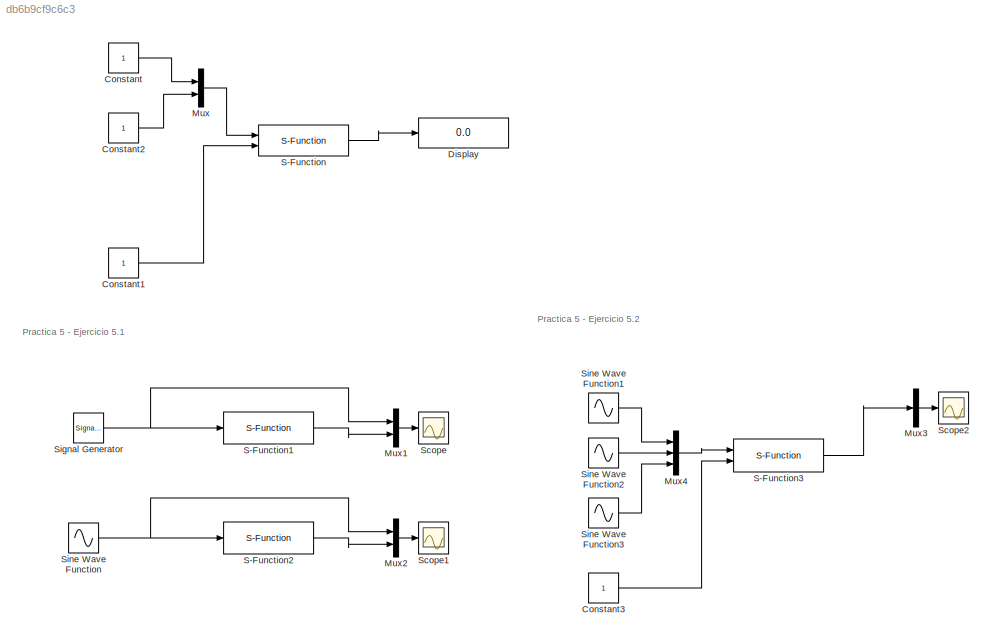
MODEL slx_db6b9cf9c6c3
KIND model
CONFIG AbsTol = auto
CONFIG EnableMultiTasking = off
CONFIG FixedStep = auto
CONFIG MaxStep = auto
CONFIG MinStep = auto
CONFIG RelTol = 1e-3
CONFIG SampleTimeConstraint = Unconstrained
CONFIG SolverName = VariableStepAuto
CONFIG StartTime = 0.0
CONFIG StopTime = 10.0
BLOCK [Constant] Constant
BLOCK [Constant] Constant1
BLOCK [Constant] Constant2
BLOCK [Constant] Constant3
BLOCK [Display] Display
  Decimation = 1
  Ports = [1]
BLOCK [Mux] Mux
  DisplayOption = bar
  Inputs = 2
  Ports = [2, 1]
BLOCK [Mux] Mux1
  DisplayOption = bar
  Inputs = 2
  Ports = [2, 1]
BLOCK [Mux] Mux2
  DisplayOption = bar
  Inputs = 2
  Ports = [2, 1]
BLOCK [Mux] Mux3
  DisplayOption = bar
  Inputs = 1
  Ports = [1, 1]
BLOCK [Mux] Mux4
  DisplayOption = bar
  Inputs = 3
  Ports = [3, 1]
BLOCK [S-Function] S-Function
  EnableBusSupport = off
  FunctionName = funcion1
  InitFcn = mex funcion1.c
  Parameters = 10 10
  Ports = [2, 1]
  SFcnIsStateOwnerBlock = off
  SFunctionDeploymentMode = off
BLOCK [S-Function] S-Function1
  EnableBusSupport = off
  FunctionName = RecorteSeno
  InitFcn = mex RecorteSeno.c
  Parameters = 3 -3
  Ports = [1, 1]
  SFcnIsStateOwnerBlock = off
  SFunctionDeploymentMode = off
BLOCK [S-Function] S-Function2
  EnableBusSupport = off
  FunctionName = RecorteSeno
  InitFcn = mex RecorteSeno.c
  Parameters = 3 -3
  Ports = [1, 1]
  SFcnIsStateOwnerBlock = off
  SFunctionDeploymentMode = off
BLOCK [S-Function] S-Function3
  EnableBusSupport = off
  FunctionName = SaturaSeno
  InitFcn = mex SaturaSeno.c
  Parameters = 0 0
  Ports = [2, 1]
  SFcnIsStateOwnerBlock = off
  SFunctionDeploymentMode = off
BLOCK [Scope] Scope
  Floating = off
  NumInputPorts = 1
  Ports = [1]
  ScopeSpecificationString = Simulink.scopes.TimeScopeBlockCfg('CurrentConfiguration', extmgr.ConfigurationSet(extmgr.Configuration('Core','General UI',true),extmgr.Configuration('Core','Source UI',true),extmgr.Configuration('Sources','WiredSimulink',true),extmgr.Configuration('Visuals','Time Domain',true,'SerializedDisplays',{struct('MinYLimReal','-6.22816','MaxYLimReal','6.2452','YLabelReal','','MinYLimMag','0.00000','MaxYL...<+1375ch>
BLOCK [Scope] Scope1
  Floating = off
  NumInputPorts = 1
  Ports = [1]
  ScopeSpecificationString = Simulink.scopes.TimeScopeBlockCfg('CurrentConfiguration', extmgr.ConfigurationSet(extmgr.Configuration('Core','General UI',true),extmgr.Configuration('Core','Source UI',true),extmgr.Configuration('Sources','WiredSimulink',true,'DataLoggingVariableName','ScopeData1'),extmgr.Configuration('Visuals','Time Domain',true,'SerializedDisplays',{struct('MinYLimReal','-4.98253','MaxYLimReal','4.99616','YLab...<+1391ch>
BLOCK [Scope] Scope2
  Floating = off
  NumInputPorts = 1
  Ports = [1]
  ScopeSpecificationString = Simulink.scopes.TimeScopeBlockCfg('CurrentConfiguration', extmgr.ConfigurationSet(extmgr.Configuration('Core','General UI',true),extmgr.Configuration('Core','Source UI',true),extmgr.Configuration('Sources','WiredSimulink',true,'DataLoggingVariableName','ScopeData2'),extmgr.Configuration('Visuals','Time Domain',true,'SerializedDisplays',{struct('MinYLimReal','-4.62427','MaxYLimReal','1.62492','YLab...<+1397ch>
BLOCK [SignalGenerator] Signal Generator
  Amplitude = 5
  Ports = [0, 1]
  Units = rad/sec
BLOCK [Sin] Sine Wave Function
  Amplitude = 4
  Ports = [0, 1]
  SampleTime = 0
BLOCK [Sin] Sine Wave Function1
  Amplitude = 4
  Ports = [0, 1]
  SampleTime = 0
BLOCK [Sin] Sine Wave Function2
  Amplitude = 4
  Phase = pi/3
  Ports = [0, 1]
  SampleTime = 0
BLOCK [Sin] Sine Wave Function3
  Amplitude = 4
  Phase = 2*pi/3
  Ports = [0, 1]
  SampleTime = 0
ANNOTATION (root): Practica 5 - Ejercicio 5.1
ANNOTATION (root): Practica 5 - Ejercicio 5.2
LINE Constant1:1 -> S-Function:2
LINE Constant2:1 -> Mux:2
LINE Constant3:1 -> S-Function3:2
LINE Constant:1 -> Mux:1
LINE Mux1:1 -> Scope:1
LINE Mux2:1 -> Scope1:1
LINE Mux3:1 -> Scope2:1
LINE Mux4:1 -> S-Function3:1
LINE Mux:1 -> S-Function:1
LINE S-Function1:1 -> Mux1:2
LINE S-Function2:1 -> Mux2:2
LINE S-Function3:1 -> Mux3:1
LINE S-Function:1 -> Display:1
NET Signal Generator:1 -> Mux1:1, S-Function1:1
LINE Sine Wave Function1:1 -> Mux4:1
LINE Sine Wave Function2:1 -> Mux4:2
LINE Sine Wave Function3:1 -> Mux4:3
NET Sine Wave Function:1 -> Mux2:1, S-Function2:1
note: NET lines group one-source signal fan-out (src -> all destinations, sorted); 1:1 wires keep LINE
